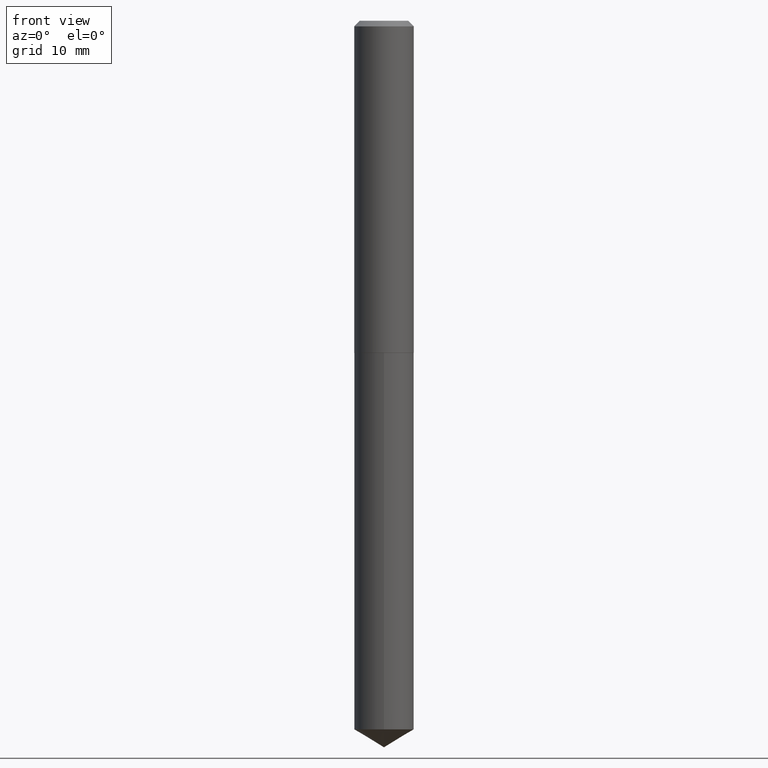
[diagram: clean part render]
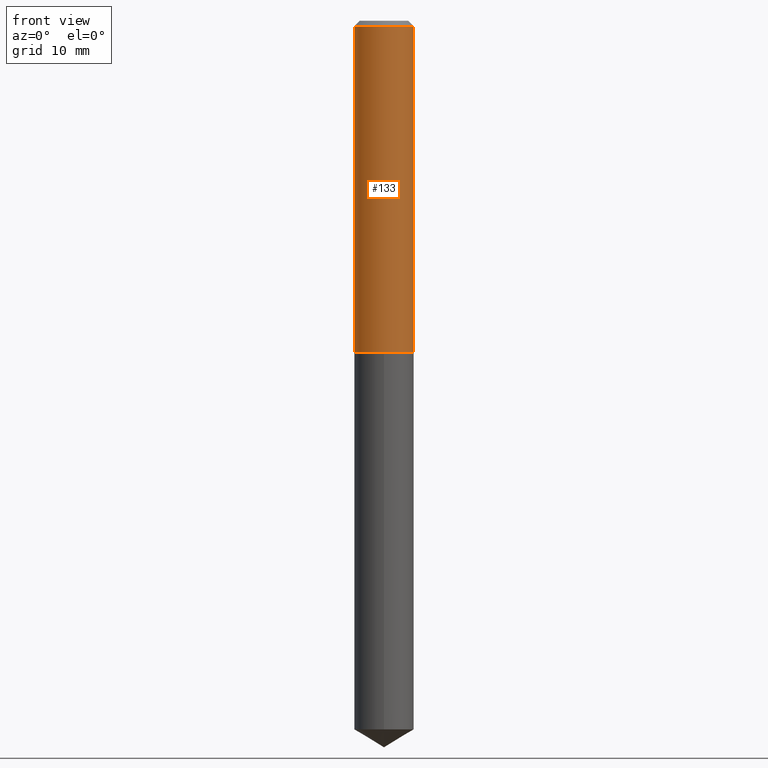
[diagram: same view with one face highlighted and labeled with its STEP entity id]
A machine part, front view. The second image highlights one B-rep face of the part: STEP entity #133.
In plain terms, the highlighted cylindrical surface (edge-blend (fillet) strip) has radius 4.1669 mm, axis along (-0, 0, 1).
Its self-contained STEP definition (entity closure, byte-faithful):
#3 = LINE ( 'NONE', #88, #195 ) ;
#8 = ORIENTED_EDGE ( 'NONE', *, *, #290, .F. ) ;
#12 = AXIS2_PLACEMENT_3D ( 'NONE', #153, #61, #92 ) ;
#31 = ORIENTED_EDGE ( 'NONE', *, *, #386, .T. ) ;
#36 = CARTESIAN_POINT ( 'NONE',  ( 7.642090019328608793E-31, -1.091087918388491130E-16, -0.03125000000000023592 ) ) ;
#44 = ORIENTED_EDGE ( 'NONE', *, *, #371, .T. ) ;
#46 = VERTEX_POINT ( 'NONE', #383 ) ;
#60 = EDGE_CURVE ( 'NONE', #118, #72, #141, .T. ) ;
#61 = DIRECTION ( 'NONE',  ( -2.445468806185136597E-29, 3.491481338843145583E-15, 1.000000000000000000 ) ) ;
#72 = VERTEX_POINT ( 'NONE', #387 ) ;
#80 = CARTESIAN_POINT ( 'NONE',  ( 0.000000000000000000, 0.000000000000000000, 0.000000000000000000 ) ) ;
#88 = CARTESIAN_POINT ( 'NONE',  ( 0.1640500000000001124, -1.145555027274433043E-15, 7.999368000693238548E-30 ) ) ;
#90 = DIRECTION ( 'NONE',  ( -2.445468806185136877E-29, 3.491481338843145188E-15, 1.000000000000000000 ) ) ;
#92 = DIRECTION ( 'NONE',  ( 1.000000000000000000, -6.982962677686264344E-15, 0.000000000000000000 ) ) ;
#109 = DIRECTION ( 'NONE',  ( 1.000000000000000000, -6.982962677686268288E-15, 4.876176775795935793E-29 ) ) ;
#112 = DIRECTION ( 'NONE',  ( -2.445468806185136877E-29, 3.491481338843145188E-15, 1.000000000000000000 ) ) ;
#118 = VERTEX_POINT ( 'NONE', #176 ) ;
#120 = DIRECTION ( 'NONE',  ( 1.000000000000000000, -6.982962677686266711E-15, 0.000000000000000000 ) ) ;
#133 = ADVANCED_FACE ( 'NONE', ( #356 ), #171, .T. ) ;
#137 = AXIS2_PLACEMENT_3D ( 'NONE', #80, #178, #109 ) ;
#141 = LINE ( 'NONE', #263, #259 ) ;
#153 = CARTESIAN_POINT ( 'NONE',  ( 4.469338790183955624E-29, -6.381031294869733069E-15, -1.827599999999999891 ) ) ;
#167 = ORIENTED_EDGE ( 'NONE', *, *, #60, .F. ) ;
#171 = CYLINDRICAL_SURFACE ( 'NONE', #137, 0.1640500000000001124 ) ;
#176 = CARTESIAN_POINT ( 'NONE',  ( -0.1640500000000002512, -5.215385936855286140E-15, -1.827599999999999891 ) ) ;
#178 = DIRECTION ( 'NONE',  ( -2.445468806185136597E-29, 3.491481338843145583E-15, 1.000000000000000000 ) ) ;
#181 = DIRECTION ( 'NONE',  ( -2.445468806185136597E-29, 3.491481338843145583E-15, 1.000000000000000000 ) ) ;
#195 = VECTOR ( 'NONE', #90, 39.37007874015748143 ) ;
#221 = EDGE_LOOP ( 'NONE', ( #167, #31, #44, #8 ) ) ;
#255 = AXIS2_PLACEMENT_3D ( 'NONE', #36, #181, #120 ) ;
#259 = VECTOR ( 'NONE', #112, 39.37007874015748143 ) ;
#263 = CARTESIAN_POINT ( 'NONE',  ( -0.1640500000000001124, 1.165645358014445154E-15, -8.069513015563179171E-30 ) ) ;
#290 = EDGE_CURVE ( 'NONE', #72, #46, #359, .T. ) ;
#306 = CIRCLE ( 'NONE', #12, 0.1640500000000002512 ) ;
#337 = CARTESIAN_POINT ( 'NONE',  ( 0.1640500000000002512, -7.526586322144166309E-15, -1.827599999999999891 ) ) ;
#352 = VERTEX_POINT ( 'NONE', #337 ) ;
#356 = FACE_OUTER_BOUND ( 'NONE', #221, .T. ) ;
#359 = CIRCLE ( 'NONE', #255, 0.1640500000000000291 ) ;
#371 = EDGE_CURVE ( 'NONE', #352, #46, #3, .T. ) ;
#383 = CARTESIAN_POINT ( 'NONE',  ( 0.1640500000000000291, -1.254663819113281355E-15, -0.03125000000000023592 ) ) ;
#386 = EDGE_CURVE ( 'NONE', #118, #352, #306, .T. ) ;
#387 = CARTESIAN_POINT ( 'NONE',  ( -0.1640500000000000291, -2.079424685339844945E-15, -0.03125000000000023592 ) ) ;